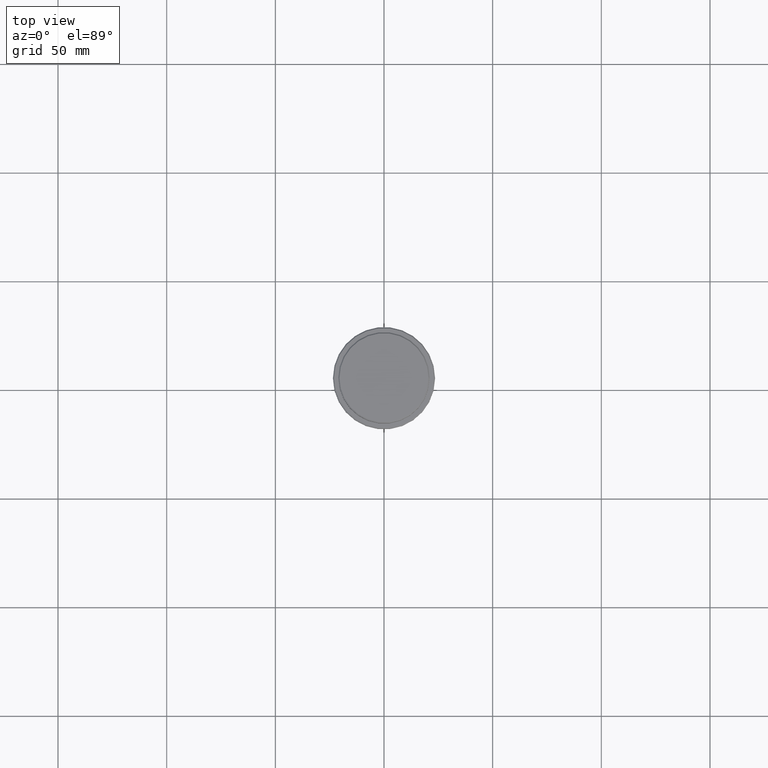
[diagram: clean part render]
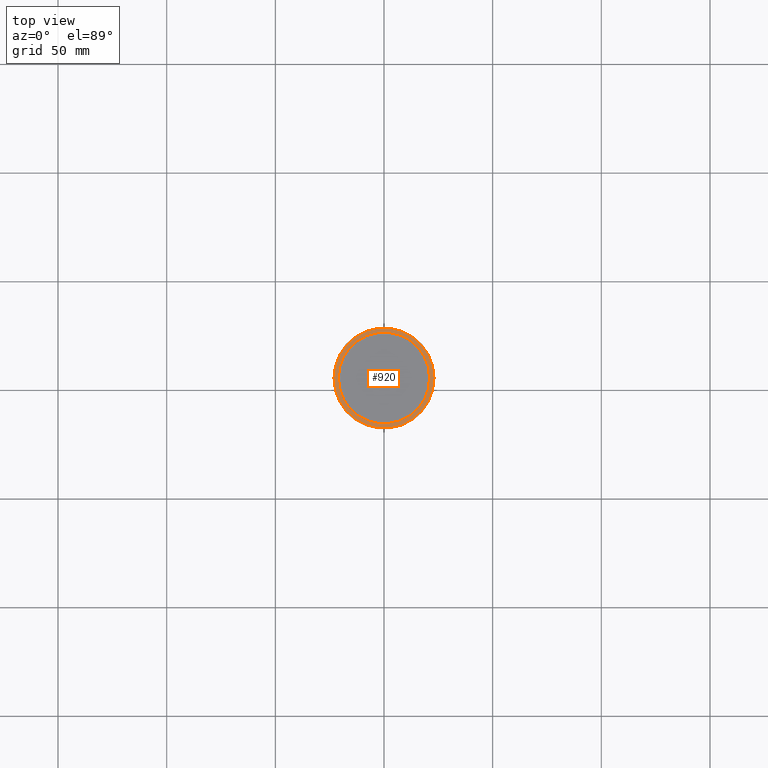
[diagram: same view with one face highlighted and labeled with its STEP entity id]
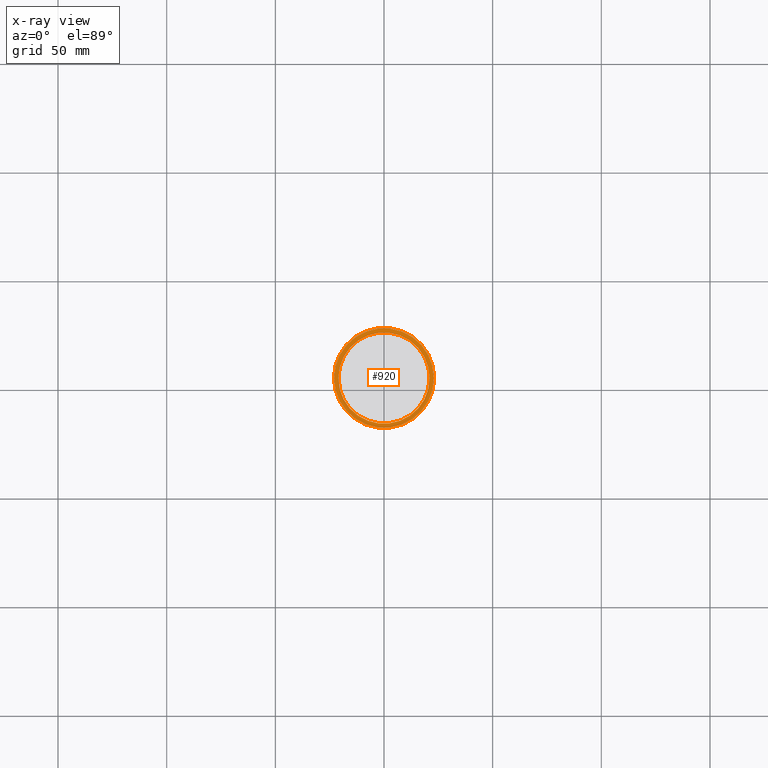
[diagram: x-ray of the same camera — body ghosted, the highlighted face saturated]
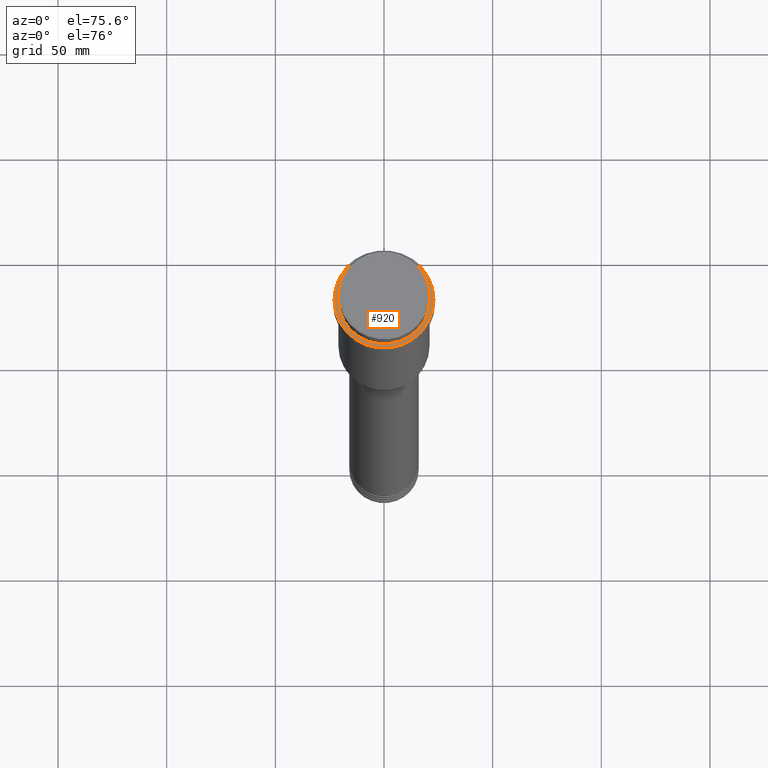
[diagram: same view with one face highlighted and labeled with its STEP entity id]
A machine part, top view. The second image highlights one B-rep face of the part: STEP entity #920.
The next image is the same camera in x-ray: the body ghosted, the highlighted face saturated — about 0% of this face is hidden behind the body in this view.
A second angle (auxiliary view) of the same face is appended — the face is thin or edge-on in the first view.
In plain terms, the highlighted planar face has unit normal (0, -0, 1).
Its self-contained STEP definition (entity closure, byte-faithful):
#20 = PLANE ( 'NONE',  #990 ) ;
#102 = ORIENTED_EDGE ( 'NONE', *, *, #388, .T. ) ;
#109 = EDGE_CURVE ( 'NONE', #915, #1026, #116, .T. ) ;
#116 = CIRCLE ( 'NONE', #1146, 20.99999999999999289 ) ;
#133 = DIRECTION ( 'NONE',  ( 1.000000000000000000, 0.000000000000000000, 0.000000000000000000 ) ) ;
#141 = DIRECTION ( 'NONE',  ( 1.000000000000000000, 0.000000000000000000, 0.000000000000000000 ) ) ;
#158 = DIRECTION ( 'NONE',  ( 0.000000000000000000, 0.000000000000000000, -1.000000000000000000 ) ) ;
#163 = CARTESIAN_POINT ( 'NONE',  ( 23.00000000000005329, 2.847303808017599689E-15, -9.000000000000001776 ) ) ;
#241 = CARTESIAN_POINT ( 'NONE',  ( -20.99999999999999289, 2.571758278209440872E-15, -9.000000000000001776 ) ) ;
#306 = EDGE_LOOP ( 'NONE', ( #1230, #1302 ) ) ;
#330 = EDGE_CURVE ( 'NONE', #454, #757, #1052, .T. ) ;
#366 = CARTESIAN_POINT ( 'NONE',  ( 0.000000000000000000, 20.49999999999999645, -9.000000000000001776 ) ) ;
#367 = ORIENTED_EDGE ( 'NONE', *, *, #109, .T. ) ;
#371 = DIRECTION ( 'NONE',  ( 1.000000000000000000, 0.000000000000000000, 0.000000000000000000 ) ) ;
#373 = AXIS2_PLACEMENT_3D ( 'NONE', #1121, #677, #1345 ) ;
#388 = EDGE_CURVE ( 'NONE', #1026, #915, #929, .T. ) ;
#391 = CARTESIAN_POINT ( 'NONE',  ( 0.000000000000000000, 0.000000000000000000, -9.000000000000001776 ) ) ;
#426 = CARTESIAN_POINT ( 'NONE',  ( -23.00000000000005329, 0.000000000000000000, -9.000000000000001776 ) ) ;
#454 = VERTEX_POINT ( 'NONE', #163 ) ;
#605 = CARTESIAN_POINT ( 'NONE',  ( 20.99999999999999289, 0.000000000000000000, -9.000000000000001776 ) ) ;
#677 = DIRECTION ( 'NONE',  ( -0.000000000000000000, -0.000000000000000000, 1.000000000000000000 ) ) ;
#717 = AXIS2_PLACEMENT_3D ( 'NONE', #391, #1286, #371 ) ;
#757 = VERTEX_POINT ( 'NONE', #426 ) ;
#787 = FACE_BOUND ( 'NONE', #1340, .T. ) ;
#810 = CARTESIAN_POINT ( 'NONE',  ( 0.000000000000000000, 0.000000000000000000, -9.000000000000001776 ) ) ;
#838 = EDGE_CURVE ( 'NONE', #757, #454, #1279, .T. ) ;
#894 = DIRECTION ( 'NONE',  ( 1.000000000000000000, 0.000000000000000000, 0.000000000000000000 ) ) ;
#915 = VERTEX_POINT ( 'NONE', #241 ) ;
#920 = ADVANCED_FACE ( 'NONE', ( #1129, #787 ), #20, .T. ) ;
#929 = CIRCLE ( 'NONE', #977, 20.99999999999999289 ) ;
#977 = AXIS2_PLACEMENT_3D ( 'NONE', #810, #1126, #133 ) ;
#990 = AXIS2_PLACEMENT_3D ( 'NONE', #366, #1117, #141 ) ;
#1026 = VERTEX_POINT ( 'NONE', #605 ) ;
#1052 = CIRCLE ( 'NONE', #717, 23.00000000000005329 ) ;
#1117 = DIRECTION ( 'NONE',  ( 0.000000000000000000, -0.000000000000000000, 1.000000000000000000 ) ) ;
#1121 = CARTESIAN_POINT ( 'NONE',  ( 0.000000000000000000, 0.000000000000000000, -9.000000000000001776 ) ) ;
#1126 = DIRECTION ( 'NONE',  ( 0.000000000000000000, 0.000000000000000000, -1.000000000000000000 ) ) ;
#1129 = FACE_OUTER_BOUND ( 'NONE', #306, .T. ) ;
#1146 = AXIS2_PLACEMENT_3D ( 'NONE', #1228, #158, #894 ) ;
#1228 = CARTESIAN_POINT ( 'NONE',  ( 0.000000000000000000, 0.000000000000000000, -9.000000000000001776 ) ) ;
#1230 = ORIENTED_EDGE ( 'NONE', *, *, #838, .T. ) ;
#1279 = CIRCLE ( 'NONE', #373, 23.00000000000005329 ) ;
#1286 = DIRECTION ( 'NONE',  ( -0.000000000000000000, -0.000000000000000000, 1.000000000000000000 ) ) ;
#1302 = ORIENTED_EDGE ( 'NONE', *, *, #330, .T. ) ;
#1340 = EDGE_LOOP ( 'NONE', ( #102, #367 ) ) ;
#1345 = DIRECTION ( 'NONE',  ( 1.000000000000000000, 0.000000000000000000, 0.000000000000000000 ) ) ;